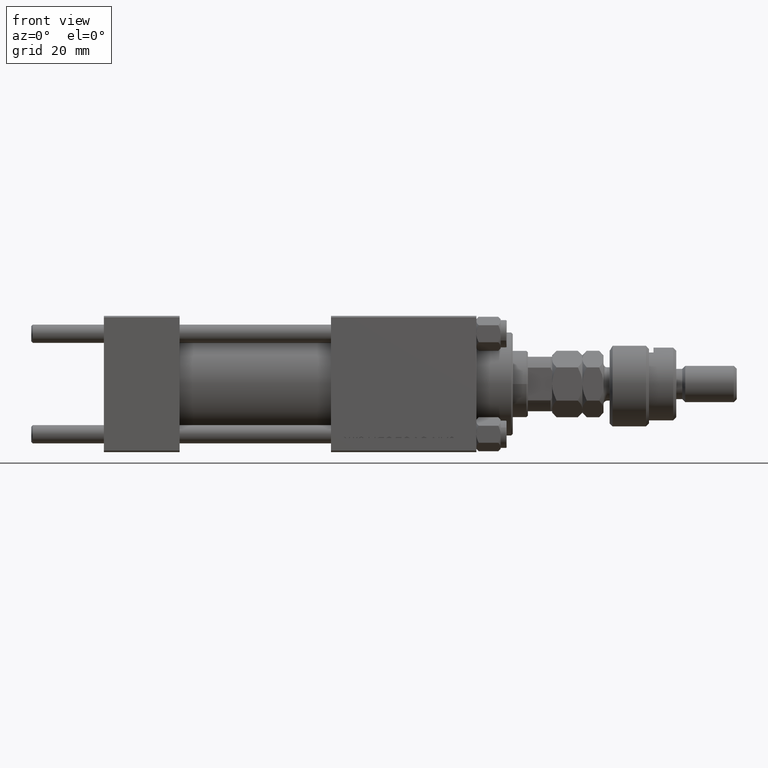
[diagram: clean part render]
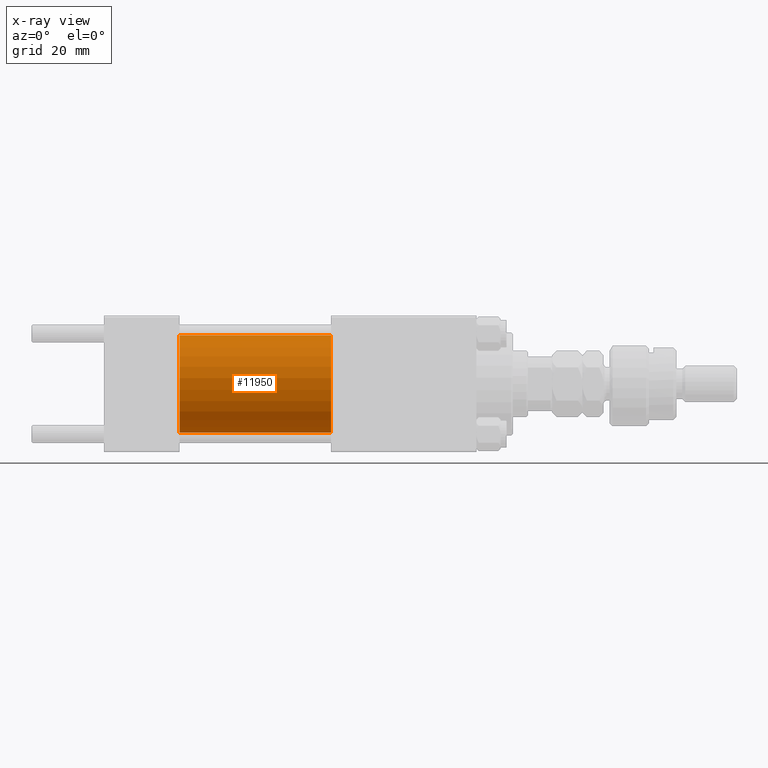
[diagram: x-ray — body ghosted, one internal face saturated and labeled with its STEP entity id]
A machine part, front view, then the same camera in x-ray: the body is ghosted and one INTERNAL B-rep face — a face not visible from any outside direction — is saturated and labeled: STEP entity #11950.
In plain terms, the highlighted cylindrical surface (partial cylindrical patch) has radius 16 mm, axis along (-1, -0, -0).
Its self-contained STEP definition (entity closure, byte-faithful):
#137 = CARTESIAN_POINT ( 'NONE',  ( 75.00000000000001421, 1.959434878635765131E-15, -16.00000000000000000 ) ) ;
#1260 = CARTESIAN_POINT ( 'NONE',  ( 75.00000000000001421, 0.000000000000000000, 0.000000000000000000 ) ) ;
#2654 = EDGE_CURVE ( 'NONE', #19565, #17717, #40176, .T. ) ;
#2662 = CARTESIAN_POINT ( 'NONE',  ( 25.00000000000000000, 1.959434878635765131E-15, -16.00000000000000000 ) ) ;
#8126 = DIRECTION ( 'NONE',  ( -1.000000000000000000, -0.000000000000000000, -0.000000000000000000 ) ) ;
#8210 = DIRECTION ( 'NONE',  ( -1.000000000000000000, -0.000000000000000000, -0.000000000000000000 ) ) ;
#9148 = ORIENTED_EDGE ( 'NONE', *, *, #45048, .T. ) ;
#9744 = VECTOR ( 'NONE', #8126, 1000.000000000000000 ) ;
#11145 = DIRECTION ( 'NONE',  ( 1.000000000000000000, 0.000000000000000000, 0.000000000000000000 ) ) ;
#11950 = ADVANCED_FACE ( 'NONE', ( #13246 ), #28717, .F. ) ;
#12220 = DIRECTION ( 'NONE',  ( 0.000000000000000000, 0.000000000000000000, -1.000000000000000000 ) ) ;
#13246 = FACE_OUTER_BOUND ( 'NONE', #44066, .T. ) ;
#14205 = CARTESIAN_POINT ( 'NONE',  ( 75.00000000000001421, 0.000000000000000000, 16.00000000000000000 ) ) ;
#15345 = ORIENTED_EDGE ( 'NONE', *, *, #43464, .T. ) ;
#17131 = CARTESIAN_POINT ( 'NONE',  ( 25.00000000000000000, 0.000000000000000000, 16.00000000000000000 ) ) ;
#17205 = AXIS2_PLACEMENT_3D ( 'NONE', #52200, #11145, #12220 ) ;
#17717 = VERTEX_POINT ( 'NONE', #2662 ) ;
#18217 = CIRCLE ( 'NONE', #42921, 16.00000000000000000 ) ;
#18601 = DIRECTION ( 'NONE',  ( 0.000000000000000000, 0.000000000000000000, -1.000000000000000000 ) ) ;
#19121 = ORIENTED_EDGE ( 'NONE', *, *, #2654, .F. ) ;
#19565 = VERTEX_POINT ( 'NONE', #17131 ) ;
#24454 = DIRECTION ( 'NONE',  ( 0.000000000000000000, 0.000000000000000000, 1.000000000000000000 ) ) ;
#26065 = LINE ( 'NONE', #50594, #49864 ) ;
#26253 = CARTESIAN_POINT ( 'NONE',  ( 75.00000000000001421, 1.959434878635765131E-15, -16.00000000000000000 ) ) ;
#28717 = CYLINDRICAL_SURFACE ( 'NONE', #31828, 16.00000000000000000 ) ;
#29089 = EDGE_CURVE ( 'NONE', #30543, #19565, #26065, .T. ) ;
#30543 = VERTEX_POINT ( 'NONE', #14205 ) ;
#31828 = AXIS2_PLACEMENT_3D ( 'NONE', #1260, #8210, #24454 ) ;
#32086 = LINE ( 'NONE', #137, #9744 ) ;
#35368 = DIRECTION ( 'NONE',  ( 1.000000000000000000, 0.000000000000000000, 0.000000000000000000 ) ) ;
#40176 = CIRCLE ( 'NONE', #17205, 16.00000000000000000 ) ;
#42921 = AXIS2_PLACEMENT_3D ( 'NONE', #43646, #35368, #18601 ) ;
#43192 = ORIENTED_EDGE ( 'NONE', *, *, #29089, .F. ) ;
#43464 = EDGE_CURVE ( 'NONE', #30543, #44776, #18217, .T. ) ;
#43646 = CARTESIAN_POINT ( 'NONE',  ( 75.00000000000001421, 0.000000000000000000, 0.000000000000000000 ) ) ;
#44066 = EDGE_LOOP ( 'NONE', ( #15345, #9148, #19121, #43192 ) ) ;
#44776 = VERTEX_POINT ( 'NONE', #26253 ) ;
#45048 = EDGE_CURVE ( 'NONE', #44776, #17717, #32086, .T. ) ;
#46590 = DIRECTION ( 'NONE',  ( -1.000000000000000000, -0.000000000000000000, -0.000000000000000000 ) ) ;
#49864 = VECTOR ( 'NONE', #46590, 1000.000000000000000 ) ;
#50594 = CARTESIAN_POINT ( 'NONE',  ( 75.00000000000001421, 0.000000000000000000, 16.00000000000000000 ) ) ;
#52200 = CARTESIAN_POINT ( 'NONE',  ( 25.00000000000000000, 0.000000000000000000, 0.000000000000000000 ) ) ;